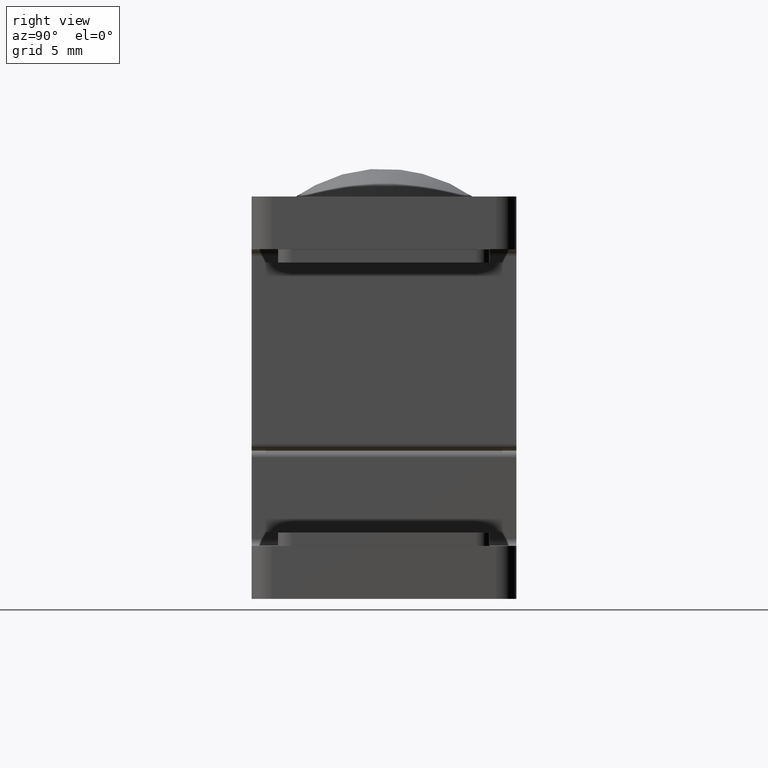
[diagram: clean part render]
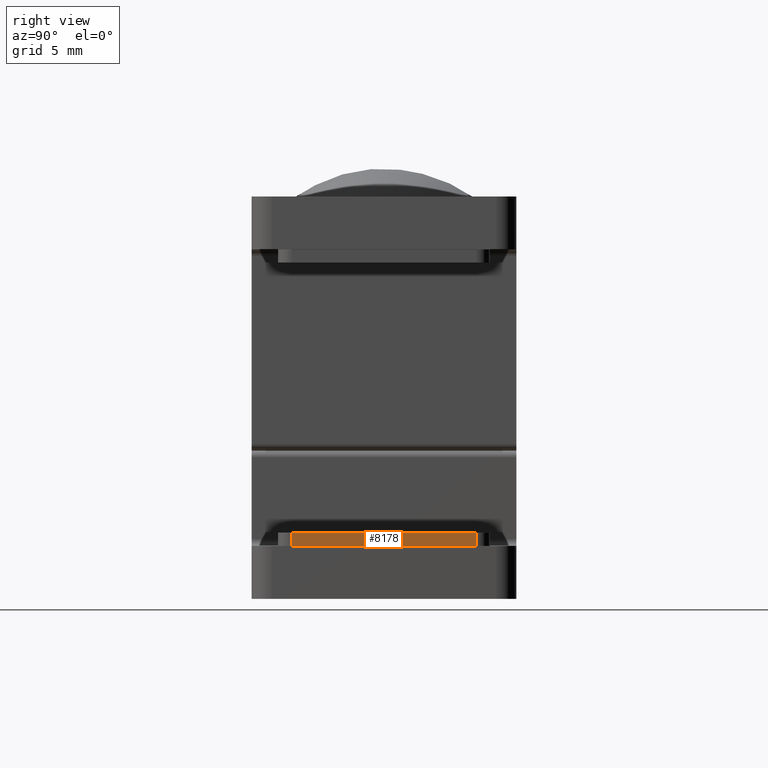
[diagram: same view with one face highlighted and labeled with its STEP entity id]
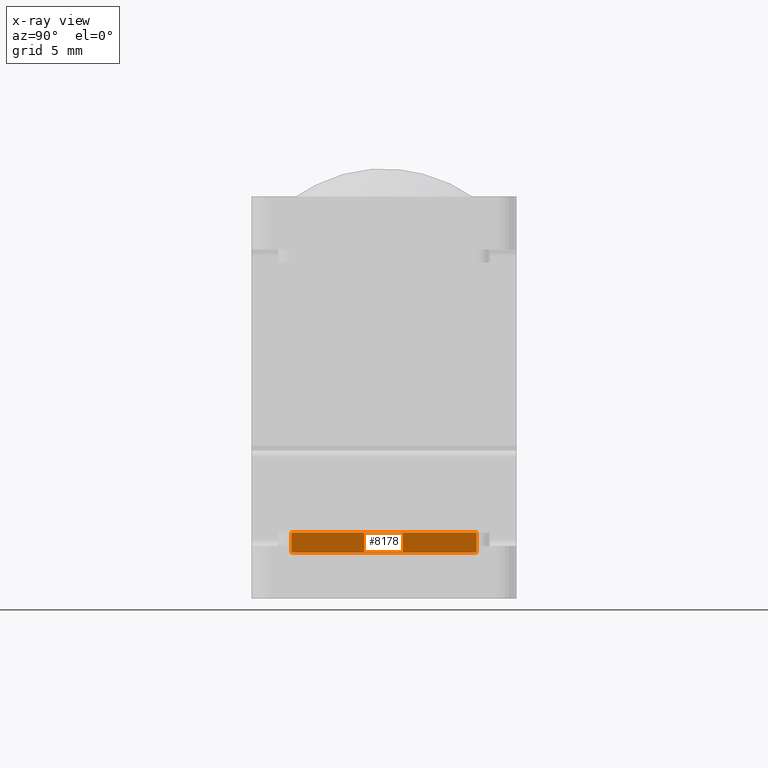
[diagram: x-ray of the same camera — body ghosted, the highlighted face saturated]
A machine part, right view. The second image highlights one B-rep face of the part: STEP entity #8178.
The next image is the same camera in x-ray: the body ghosted, the highlighted face saturated — about 0% of this face is hidden behind the body in this view.
In plain terms, the highlighted planar face has unit normal (1, 0, 0).
Its self-contained STEP definition (entity closure, byte-faithful):
#238 = LINE ( 'NONE', #8672, #9244 ) ;
#895 = CARTESIAN_POINT ( 'NONE',  ( 5.999999999999997335, 8.000000000000000000, 0.000000000000000000 ) ) ;
#1157 = DIRECTION ( 'NONE',  ( 0.000000000000000000, 0.000000000000000000, -1.000000000000000000 ) ) ;
#2564 = VERTEX_POINT ( 'NONE', #18569 ) ;
#3208 = VERTEX_POINT ( 'NONE', #11566 ) ;
#3667 = EDGE_CURVE ( 'NONE', #2564, #19982, #25996, .T. ) ;
#4111 = DIRECTION ( 'NONE',  ( 1.000000000000000000, 1.084202172485504434E-16, -0.000000000000000000 ) ) ;
#4546 = ORIENTED_EDGE ( 'NONE', *, *, #7504, .T. ) ;
#4581 = VECTOR ( 'NONE', #26345, 1000.000000000000000 ) ;
#6019 = EDGE_CURVE ( 'NONE', #19982, #22455, #6606, .T. ) ;
#6606 = LINE ( 'NONE', #13214, #4581 ) ;
#7504 = EDGE_CURVE ( 'NONE', #22455, #3208, #238, .T. ) ;
#8178 = ADVANCED_FACE ( 'NONE', ( #17224 ), #27967, .T. ) ;
#8410 = AXIS2_PLACEMENT_3D ( 'NONE', #12205, #4111, #9816 ) ;
#8672 = CARTESIAN_POINT ( 'NONE',  ( 5.999999999999999112, -6.999999999999999112, 0.000000000000000000 ) ) ;
#9244 = VECTOR ( 'NONE', #1157, 1000.000000000000000 ) ;
#9816 = DIRECTION ( 'NONE',  ( -1.084202172485504434E-16, 1.000000000000000000, 0.000000000000000000 ) ) ;
#11368 = ORIENTED_EDGE ( 'NONE', *, *, #3667, .T. ) ;
#11566 = CARTESIAN_POINT ( 'NONE',  ( 5.999999999999999112, -6.999999999999999112, 0.000000000000000000 ) ) ;
#12205 = CARTESIAN_POINT ( 'NONE',  ( 5.999999999999997335, 8.000000000000000000, 1.500000000000000000 ) ) ;
#13214 = CARTESIAN_POINT ( 'NONE',  ( 5.999999999999997335, 8.000000000000000000, 1.500000000000000000 ) ) ;
#16869 = DIRECTION ( 'NONE',  ( 1.084202172485504434E-16, -1.000000000000000000, 0.000000000000000000 ) ) ;
#16957 = ORIENTED_EDGE ( 'NONE', *, *, #6019, .T. ) ;
#17224 = FACE_OUTER_BOUND ( 'NONE', #18455, .T. ) ;
#18455 = EDGE_LOOP ( 'NONE', ( #16957, #4546, #24777, #11368 ) ) ;
#18569 = CARTESIAN_POINT ( 'NONE',  ( 5.999999999999997335, 7.000000000000000000, 0.000000000000000000 ) ) ;
#19585 = EDGE_CURVE ( 'NONE', #2564, #3208, #25172, .T. ) ;
#19982 = VERTEX_POINT ( 'NONE', #21457 ) ;
#21457 = CARTESIAN_POINT ( 'NONE',  ( 5.999999999999997335, 7.000000000000000000, 1.500000000000000000 ) ) ;
#21656 = CARTESIAN_POINT ( 'NONE',  ( 5.999999999999999112, -6.999999999999999112, 1.500000000000000000 ) ) ;
#22455 = VERTEX_POINT ( 'NONE', #21656 ) ;
#23961 = VECTOR ( 'NONE', #26415, 1000.000000000000000 ) ;
#24777 = ORIENTED_EDGE ( 'NONE', *, *, #19585, .F. ) ;
#24800 = VECTOR ( 'NONE', #16869, 1000.000000000000000 ) ;
#25172 = LINE ( 'NONE', #895, #24800 ) ;
#25996 = LINE ( 'NONE', #31491, #23961 ) ;
#26345 = DIRECTION ( 'NONE',  ( 1.084202172485504434E-16, -1.000000000000000000, 0.000000000000000000 ) ) ;
#26415 = DIRECTION ( 'NONE',  ( 0.000000000000000000, -0.000000000000000000, 1.000000000000000000 ) ) ;
#27967 = PLANE ( 'NONE',  #8410 ) ;
#31491 = CARTESIAN_POINT ( 'NONE',  ( 5.999999999999997335, 7.000000000000000000, 1.500000000000000000 ) ) ;